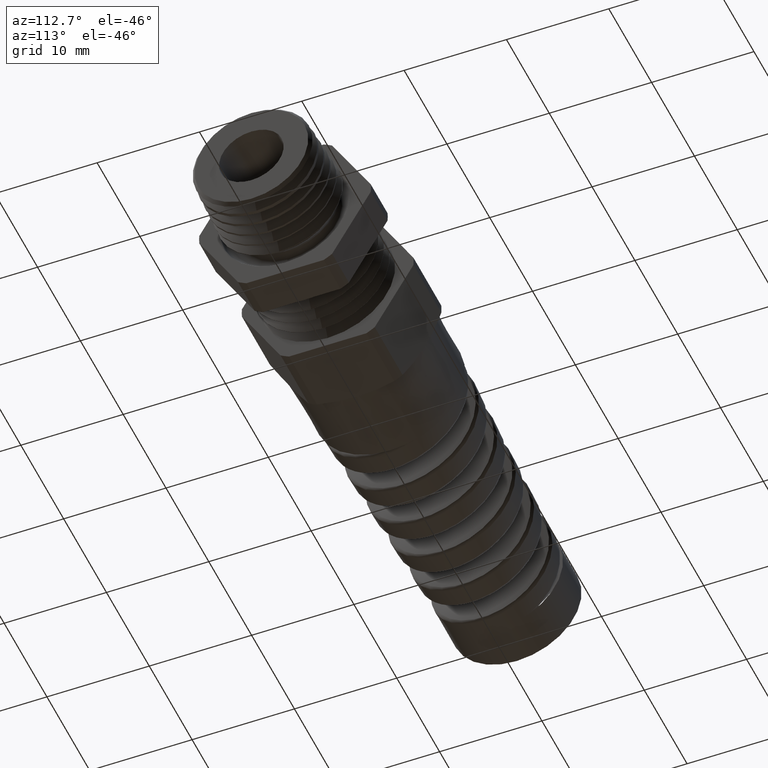
[diagram: clean part render]
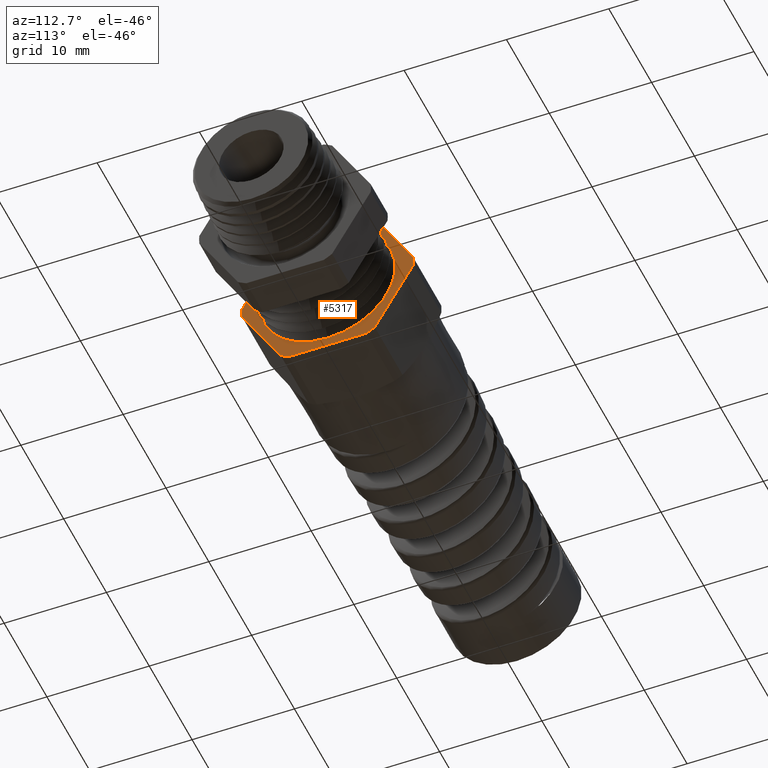
[diagram: same view with one face highlighted and labeled with its STEP entity id]
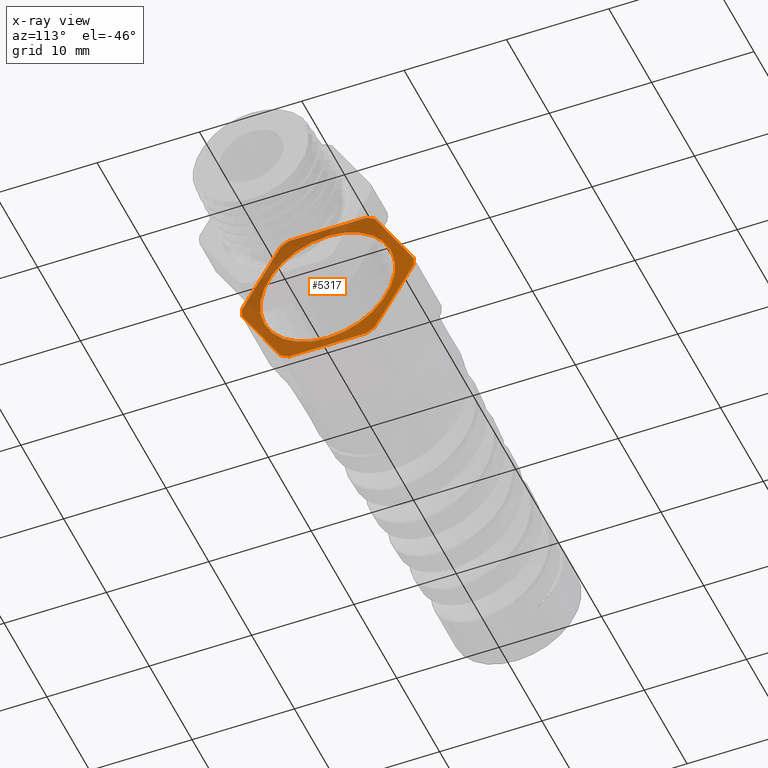
[diagram: x-ray of the same camera — body ghosted, the highlighted face saturated]
A machine part, auxiliary view. The second image highlights one B-rep face of the part: STEP entity #5317.
The next image is the same camera in x-ray: the body ghosted, the highlighted face saturated — about 38% of this face is hidden behind the body in this view.
In plain terms, the highlighted planar face has unit normal (-1, 0, 0).
Its self-contained STEP definition (entity closure, byte-faithful):
#204 = VERTEX_POINT ( 'NONE', #7602 ) ;
#205 = EDGE_CURVE ( 'NONE', #208, #204, #7601, .T. ) ;
#208 = VERTEX_POINT ( 'NONE', #7592 ) ;
#226 = EDGE_CURVE ( 'NONE', #5476, #208, #7609, .T. ) ;
#239 = EDGE_CURVE ( 'NONE', #204, #5119, #7681, .T. ) ;
#299 = EDGE_CURVE ( 'NONE', #5427, #5528, #6113, .T. ) ;
#312 = EDGE_CURVE ( 'NONE', #5433, #5428, #6053, .T. ) ;
#325 = EDGE_CURVE ( 'NONE', #5531, #5544, #7839, .T. ) ;
#464 = EDGE_CURVE ( 'NONE', #5114, #531, #8391, .T. ) ;
#531 = VERTEX_POINT ( 'NONE', #8599 ) ;
#533 = EDGE_CURVE ( 'NONE', #531, #5433, #8598, .T. ) ;
#576 = CIRCLE ( 'NONE', #633, 0.3304000000000001400 ) ;
#613 = DIRECTION ( 'NONE',  ( 0.0000000000000000000, 0.0000000000000000000, 1.000000000000000000 ) ) ;
#614 = DIRECTION ( 'NONE',  ( -1.000000000000000000, 0.0000000000000000000, 0.0000000000000000000 ) ) ;
#615 = CARTESIAN_POINT ( 'NONE',  ( -0.3920833333333335100, 0.0000000000000000000, 0.0000000000000000000 ) ) ;
#616 = AXIS2_PLACEMENT_3D ( 'NONE', #615, #614, #613 ) ;
#617 = CIRCLE ( 'NONE', #616, 0.3304000000000001400 ) ;
#622 = CARTESIAN_POINT ( 'NONE',  ( -0.3920833333333335100, 0.3298736633726285800, -0.01864205495973482100 ) ) ;
#628 = CARTESIAN_POINT ( 'NONE',  ( -0.3920833333333335100, 0.1810813248601902400, -0.2763579450402653400 ) ) ;
#629 = CARTESIAN_POINT ( 'NONE',  ( -0.3920833333333335100, 0.1487923385124379500, -0.2950000000000002600 ) ) ;
#630 = DIRECTION ( 'NONE',  ( 0.0000000000000000000, 0.0000000000000000000, 1.000000000000000000 ) ) ;
#631 = DIRECTION ( 'NONE',  ( -1.000000000000000000, 0.0000000000000000000, 0.0000000000000000000 ) ) ;
#632 = CARTESIAN_POINT ( 'NONE',  ( -0.3920833333333335100, 0.0000000000000000000, 0.0000000000000000000 ) ) ;
#633 = AXIS2_PLACEMENT_3D ( 'NONE', #632, #631, #630 ) ;
#675 = CARTESIAN_POINT ( 'NONE',  ( -0.3920833333333335100, -0.3298736633726285800, 0.01864205495973494200 ) ) ;
#813 = CARTESIAN_POINT ( 'NONE',  ( -0.3920833333333335100, -0.1810813248601903500, -0.2763579450402652300 ) ) ;
#814 = DIRECTION ( 'NONE',  ( 0.0000000000000000000, 0.0000000000000000000, 1.000000000000000000 ) ) ;
#815 = DIRECTION ( 'NONE',  ( -1.000000000000000000, 0.0000000000000000000, 0.0000000000000000000 ) ) ;
#816 = CARTESIAN_POINT ( 'NONE',  ( -0.3920833333333335100, 0.0000000000000000000, 0.0000000000000000000 ) ) ;
#817 = AXIS2_PLACEMENT_3D ( 'NONE', #816, #815, #814 ) ;
#818 = CIRCLE ( 'NONE', #817, 0.3304000000000001400 ) ;
#819 = CARTESIAN_POINT ( 'NONE',  ( -0.3920833333333335100, -0.1487923385124378900, -0.2950000000000003200 ) ) ;
#854 = CARTESIAN_POINT ( 'NONE',  ( -0.3920833333333335100, -0.3298736633726285800, -0.01864205495973494200 ) ) ;
#2911 = CARTESIAN_POINT ( 'NONE',  ( -0.3920833333333335100, 0.0000000000000000000, 0.2596999999999999900 ) ) ;
#3024 = DIRECTION ( 'NONE',  ( 0.0000000000000000000, 0.0000000000000000000, -1.000000000000000000 ) ) ;
#3025 = DIRECTION ( 'NONE',  ( 1.000000000000000000, 0.0000000000000000000, 0.0000000000000000000 ) ) ;
#3026 = CARTESIAN_POINT ( 'NONE',  ( -0.3920833333333335100, 0.0000000000000000000, 0.0000000000000000000 ) ) ;
#3027 = AXIS2_PLACEMENT_3D ( 'NONE', #3026, #3025, #3024 ) ;
#3028 = CIRCLE ( 'NONE', #3027, 0.2596999999999999900 ) ;
#5114 = VERTEX_POINT ( 'NONE', #8743 ) ;
#5119 = VERTEX_POINT ( 'NONE', #8736 ) ;
#5121 = EDGE_CURVE ( 'NONE', #5119, #5114, #8735, .T. ) ;
#5164 = VERTEX_POINT ( 'NONE', #8855 ) ;
#5291 = EDGE_CURVE ( 'NONE', #9709, #5164, #9146, .T. ) ;
#5298 = EDGE_LOOP ( 'NONE', ( #5299, #9461 ) ) ;
#5299 = ORIENTED_EDGE ( 'NONE', *, *, #5291, .F. ) ;
#5317 = ADVANCED_FACE ( 'NONE', ( #9257, #9256 ), #9263, .F. ) ;
#5342 = ORIENTED_EDGE ( 'NONE', *, *, #205, .F. ) ;
#5344 = ORIENTED_EDGE ( 'NONE', *, *, #226, .F. ) ;
#5346 = ORIENTED_EDGE ( 'NONE', *, *, #5438, .F. ) ;
#5351 = ORIENTED_EDGE ( 'NONE', *, *, #239, .F. ) ;
#5355 = ORIENTED_EDGE ( 'NONE', *, *, #312, .F. ) ;
#5358 = ORIENTED_EDGE ( 'NONE', *, *, #533, .F. ) ;
#5359 = ORIENTED_EDGE ( 'NONE', *, *, #464, .F. ) ;
#5360 = ORIENTED_EDGE ( 'NONE', *, *, #5121, .F. ) ;
#5366 = ORIENTED_EDGE ( 'NONE', *, *, #299, .F. ) ;
#5370 = ORIENTED_EDGE ( 'NONE', *, *, #5424, .F. ) ;
#5424 = EDGE_CURVE ( 'NONE', #5428, #5427, #576, .T. ) ;
#5427 = VERTEX_POINT ( 'NONE', #629 ) ;
#5428 = VERTEX_POINT ( 'NONE', #628 ) ;
#5433 = VERTEX_POINT ( 'NONE', #622 ) ;
#5438 = EDGE_CURVE ( 'NONE', #5544, #5476, #617, .T. ) ;
#5476 = VERTEX_POINT ( 'NONE', #675 ) ;
#5528 = VERTEX_POINT ( 'NONE', #819 ) ;
#5530 = EDGE_CURVE ( 'NONE', #5528, #5531, #818, .T. ) ;
#5531 = VERTEX_POINT ( 'NONE', #813 ) ;
#5544 = VERTEX_POINT ( 'NONE', #854 ) ;
#6052 = CARTESIAN_POINT ( 'NONE',  ( -0.3920833333333335100, 0.3204024941164094200, -0.03504660131859069200 ) ) ;
#6053 = LINE ( 'NONE', #6052, #7760 ) ;
#6105 = DIRECTION ( 'NONE',  ( 0.0000000000000000000, -1.000000000000000000, 0.0000000000000000000 ) ) ;
#6106 = VECTOR ( 'NONE', #6105, 39.37007874015748100 ) ;
#6107 = CARTESIAN_POINT ( 'NONE',  ( -0.3920833333333335100, 0.2596999999999999900, -0.2950000000000002600 ) ) ;
#6113 = LINE ( 'NONE', #6107, #6106 ) ;
#7592 = CARTESIAN_POINT ( 'NONE',  ( -0.3920833333333335100, -0.1810813248601902400, 0.2763579450402652800 ) ) ;
#7597 = DIRECTION ( 'NONE',  ( 0.0000000000000000000, 0.0000000000000000000, 1.000000000000000000 ) ) ;
#7598 = DIRECTION ( 'NONE',  ( -1.000000000000000000, 0.0000000000000000000, 0.0000000000000000000 ) ) ;
#7599 = CARTESIAN_POINT ( 'NONE',  ( -0.3920833333333335100, 0.0000000000000000000, 0.0000000000000000000 ) ) ;
#7600 = AXIS2_PLACEMENT_3D ( 'NONE', #7599, #7598, #7597 ) ;
#7601 = CIRCLE ( 'NONE', #7600, 0.3304000000000001400 ) ;
#7602 = CARTESIAN_POINT ( 'NONE',  ( -0.3920833333333335100, -0.1487923385124393900, 0.2949999999999994300 ) ) ;
#7609 = LINE ( 'NONE', #7650, #7649 ) ;
#7648 = DIRECTION ( 'NONE',  ( 0.0000000000000000000, 0.5000000000000001100, 0.8660254037844384900 ) ) ;
#7649 = VECTOR ( 'NONE', #7648, 39.37007874015748900 ) ;
#7650 = CARTESIAN_POINT ( 'NONE',  ( -0.3920833333333335100, -0.1905524941164094300, 0.2599533986814094900 ) ) ;
#7672 = DIRECTION ( 'NONE',  ( 0.0000000000000000000, 1.000000000000000000, 0.0000000000000000000 ) ) ;
#7673 = VECTOR ( 'NONE', #7672, 39.37007874015748100 ) ;
#7674 = CARTESIAN_POINT ( 'NONE',  ( -0.3920833333333335100, 0.2596999999999999900, 0.2949999999999994300 ) ) ;
#7681 = LINE ( 'NONE', #7674, #7673 ) ;
#7759 = DIRECTION ( 'NONE',  ( 0.0000000000000000000, -0.5000000000000001100, -0.8660254037844386000 ) ) ;
#7760 = VECTOR ( 'NONE', #7759, 39.37007874015748100 ) ;
#7830 = DIRECTION ( 'NONE',  ( 0.0000000000000000000, -0.5000000000000001100, 0.8660254037844384900 ) ) ;
#7831 = VECTOR ( 'NONE', #7830, 39.37007874015748900 ) ;
#7838 = CARTESIAN_POINT ( 'NONE',  ( -0.3920833333333335100, -0.1905524941164094300, -0.2599533986814094900 ) ) ;
#7839 = LINE ( 'NONE', #7838, #7831 ) ;
#8388 = DIRECTION ( 'NONE',  ( 0.0000000000000000000, 0.5000000000000001100, -0.8660254037844386000 ) ) ;
#8389 = VECTOR ( 'NONE', #8388, 39.37007874015748100 ) ;
#8390 = CARTESIAN_POINT ( 'NONE',  ( -0.3920833333333335100, 0.3204024941164091400, 0.03504660131859052600 ) ) ;
#8391 = LINE ( 'NONE', #8390, #8389 ) ;
#8594 = DIRECTION ( 'NONE',  ( 0.0000000000000000000, 0.0000000000000000000, 1.000000000000000000 ) ) ;
#8595 = DIRECTION ( 'NONE',  ( -1.000000000000000000, 0.0000000000000000000, 0.0000000000000000000 ) ) ;
#8596 = CARTESIAN_POINT ( 'NONE',  ( -0.3920833333333335100, 0.0000000000000000000, 0.0000000000000000000 ) ) ;
#8597 = AXIS2_PLACEMENT_3D ( 'NONE', #8596, #8595, #8594 ) ;
#8598 = CIRCLE ( 'NONE', #8597, 0.3304000000000001400 ) ;
#8599 = CARTESIAN_POINT ( 'NONE',  ( -0.3920833333333335100, 0.3298736633726286900, 0.01864205495973392200 ) ) ;
#8735 = CIRCLE ( 'NONE', #8799, 0.3304000000000001400 ) ;
#8736 = CARTESIAN_POINT ( 'NONE',  ( -0.3920833333333335100, 0.1487923385124394500, 0.2949999999999994800 ) ) ;
#8743 = CARTESIAN_POINT ( 'NONE',  ( -0.3920833333333335100, 0.1810813248601896000, 0.2763579450402657800 ) ) ;
#8796 = DIRECTION ( 'NONE',  ( 0.0000000000000000000, 0.0000000000000000000, 1.000000000000000000 ) ) ;
#8797 = DIRECTION ( 'NONE',  ( -1.000000000000000000, 0.0000000000000000000, 0.0000000000000000000 ) ) ;
#8798 = CARTESIAN_POINT ( 'NONE',  ( -0.3920833333333335100, 0.0000000000000000000, 0.0000000000000000000 ) ) ;
#8799 = AXIS2_PLACEMENT_3D ( 'NONE', #8798, #8797, #8796 ) ;
#8855 = CARTESIAN_POINT ( 'NONE',  ( -0.3920833333333335100, 3.180407737385675900E-017, -0.2596999999999999900 ) ) ;
#9142 = DIRECTION ( 'NONE',  ( 0.0000000000000000000, 0.0000000000000000000, -1.000000000000000000 ) ) ;
#9143 = DIRECTION ( 'NONE',  ( 1.000000000000000000, 0.0000000000000000000, 0.0000000000000000000 ) ) ;
#9144 = CARTESIAN_POINT ( 'NONE',  ( -0.3920833333333335100, 0.0000000000000000000, 0.0000000000000000000 ) ) ;
#9145 = AXIS2_PLACEMENT_3D ( 'NONE', #9144, #9143, #9142 ) ;
#9146 = CIRCLE ( 'NONE', #9145, 0.2596999999999999900 ) ;
#9252 = DIRECTION ( 'NONE',  ( 0.0000000000000000000, 0.0000000000000000000, 1.000000000000000000 ) ) ;
#9253 = DIRECTION ( 'NONE',  ( -1.000000000000000000, 0.0000000000000000000, 0.0000000000000000000 ) ) ;
#9254 = CARTESIAN_POINT ( 'NONE',  ( -0.3920833333333335100, 0.2596999999999999900, 0.0000000000000000000 ) ) ;
#9255 = AXIS2_PLACEMENT_3D ( 'NONE', #9254, #9253, #9252 ) ;
#9256 = FACE_OUTER_BOUND ( 'NONE', #9457, .T. ) ;
#9257 = FACE_BOUND ( 'NONE', #5298, .T. ) ;
#9263 = PLANE ( 'NONE',  #9255 ) ;
#9454 = ORIENTED_EDGE ( 'NONE', *, *, #5530, .F. ) ;
#9455 = ORIENTED_EDGE ( 'NONE', *, *, #325, .F. ) ;
#9457 = EDGE_LOOP ( 'NONE', ( #9455, #9454, #5366, #5370, #5355, #5358, #5359, #5360, #5351, #5342, #5344, #5346 ) ) ;
#9461 = ORIENTED_EDGE ( 'NONE', *, *, #9732, .F. ) ;
#9709 = VERTEX_POINT ( 'NONE', #2911 ) ;
#9732 = EDGE_CURVE ( 'NONE', #5164, #9709, #3028, .T. ) ;